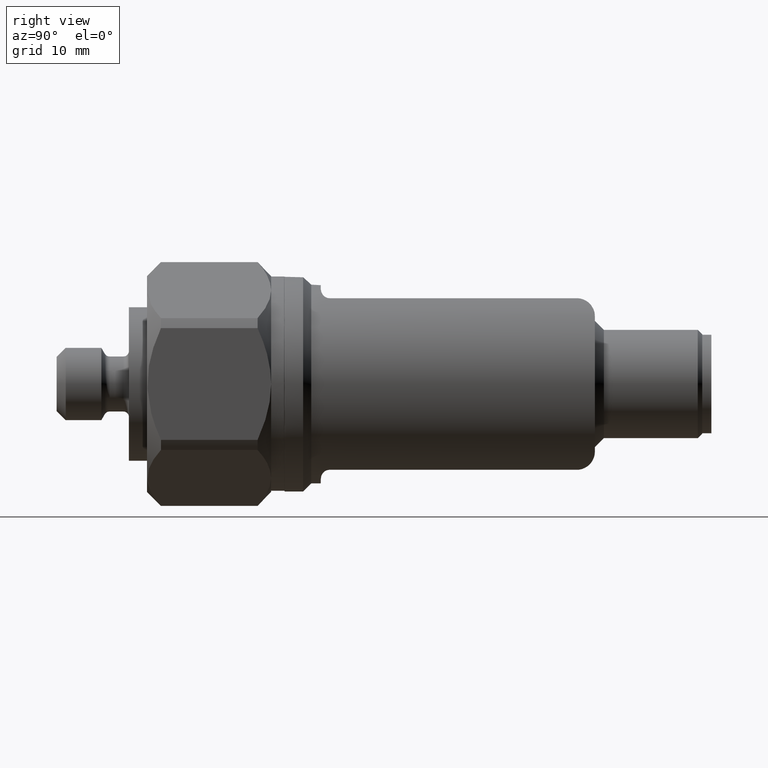
[diagram: clean part render]
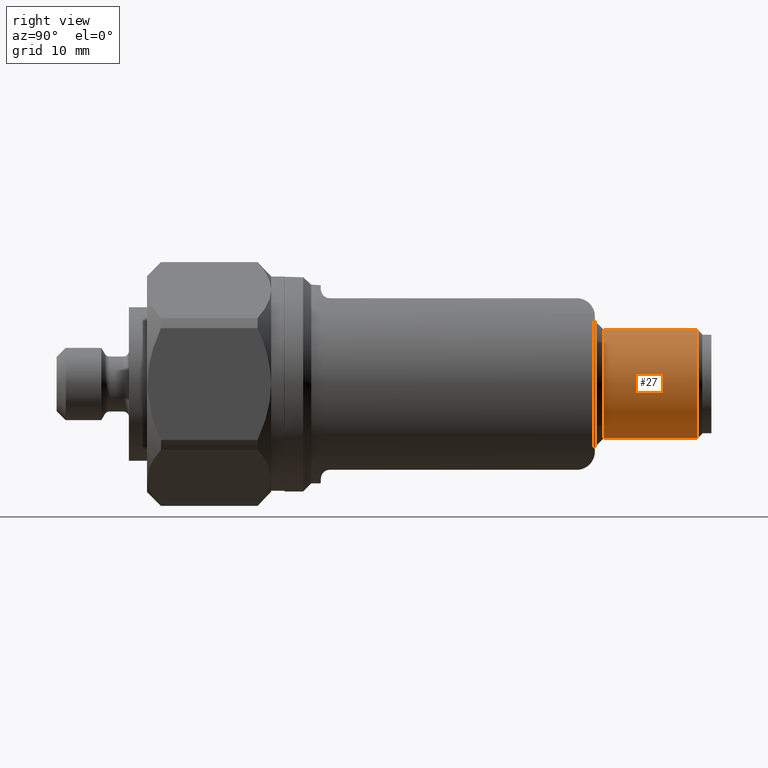
[diagram: same view with one face highlighted and labeled with its STEP entity id]
A machine part, right view. The second image highlights one B-rep face of the part: STEP entity #27.
In plain terms, the highlighted cylindrical surface (bore or boss wall) has radius 6 mm, axis along (0, -1, 0).
Its self-contained STEP definition (entity closure, byte-faithful):
#27 = ADVANCED_FACE ( 'NONE', ( #5560, #4866 ), #6706, .T. ) ;
#90 = VERTEX_POINT ( 'NONE', #2733 ) ;
#300 = EDGE_CURVE ( 'NONE', #90, #90, #5409, .T. ) ;
#474 = DIRECTION ( 'NONE',  ( 0.000000000000000000, -1.000000000000000000, 0.000000000000000000 ) ) ;
#1080 = DIRECTION ( 'NONE',  ( 0.000000000000000000, -1.000000000000000000, 0.000000000000000000 ) ) ;
#1171 = AXIS2_PLACEMENT_3D ( 'NONE', #6742, #474, #2958 ) ;
#1982 = DIRECTION ( 'NONE',  ( 0.000000000000000000, 1.000000000000000000, 0.000000000000000000 ) ) ;
#2052 = AXIS2_PLACEMENT_3D ( 'NONE', #2145, #1982, #7218 ) ;
#2145 = CARTESIAN_POINT ( 'NONE',  ( 0.000000000000000000, 36.25000000000000711, 0.000000000000000000 ) ) ;
#2349 = ORIENTED_EDGE ( 'NONE', *, *, #300, .T. ) ;
#2354 = DIRECTION ( 'NONE',  ( 0.000000000000000000, 0.000000000000000000, 1.000000000000000000 ) ) ;
#2733 = CARTESIAN_POINT ( 'NONE',  ( 0.000000000000000000, 46.64999999999999858, 6.000000000000000000 ) ) ;
#2854 = CARTESIAN_POINT ( 'NONE',  ( 0.000000000000000000, 36.25000000000000711, 6.000000000000000000 ) ) ;
#2958 = DIRECTION ( 'NONE',  ( 0.000000000000000000, 0.000000000000000000, -1.000000000000000000 ) ) ;
#3563 = EDGE_LOOP ( 'NONE', ( #2349 ) ) ;
#4354 = EDGE_LOOP ( 'NONE', ( #8067 ) ) ;
#4567 = CIRCLE ( 'NONE', #2052, 6.000000000000000000 ) ;
#4787 = EDGE_CURVE ( 'NONE', #7179, #7179, #4567, .T. ) ;
#4866 = FACE_OUTER_BOUND ( 'NONE', #4354, .T. ) ;
#5409 = CIRCLE ( 'NONE', #6447, 6.000000000000000000 ) ;
#5560 = FACE_OUTER_BOUND ( 'NONE', #3563, .T. ) ;
#6447 = AXIS2_PLACEMENT_3D ( 'NONE', #6651, #1080, #2354 ) ;
#6651 = CARTESIAN_POINT ( 'NONE',  ( 0.000000000000000000, 46.64999999999999858, 0.000000000000000000 ) ) ;
#6706 = CYLINDRICAL_SURFACE ( 'NONE', #1171, 6.000000000000000000 ) ;
#6742 = CARTESIAN_POINT ( 'NONE',  ( 0.000000000000000000, -15.43046141069414112, 0.000000000000000000 ) ) ;
#7179 = VERTEX_POINT ( 'NONE', #2854 ) ;
#7218 = DIRECTION ( 'NONE',  ( 0.000000000000000000, 0.000000000000000000, 1.000000000000000000 ) ) ;
#8067 = ORIENTED_EDGE ( 'NONE', *, *, #4787, .T. ) ;